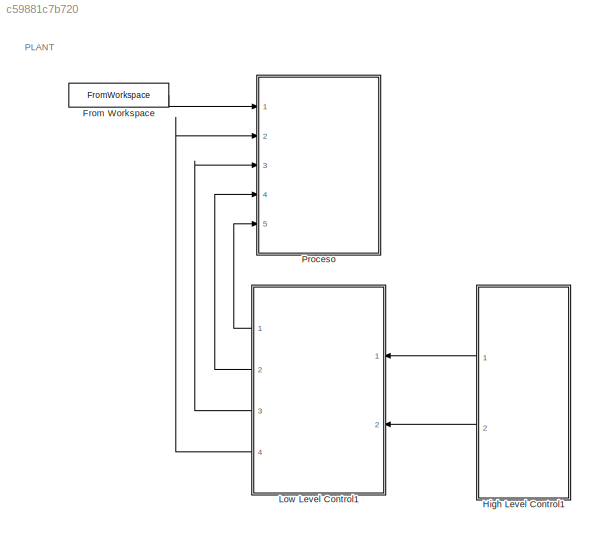
MODEL slx_c59881c7b720
KIND model
CONFIG AbsTol = auto
CONFIG EnableMultiTasking = on
CONFIG FixedStep = 1E-4
CONFIG MaxStep = 100
CONFIG MinStep = auto
CONFIG RelTol = 1e-3
CONFIG SampleTimeConstraint = Unconstrained
CONFIG SolverName = ode23tb
CONFIG StartTime = 0.0
CONFIG StopTime = 100
BLOCK [FromWorkspace] From Workspace
  OutputAfterFinalValue = Holding final value
  VariableName = InfluentBSM1_LT(1:16)
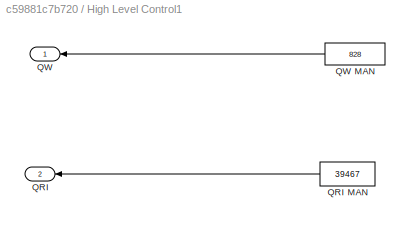
BLOCK [SubSystem] High Level Control1
  Ports = [0, 2]
  RequestExecContextInheritance = off
BLOCK [Outport] High Level Control1/QRI
  Port = 2
BLOCK [Constant] High Level Control1/QRI MAN
  Value = 39467
BLOCK [Outport] High Level Control1/QW
BLOCK [Constant] High Level Control1/QW MAN
  Value = 828
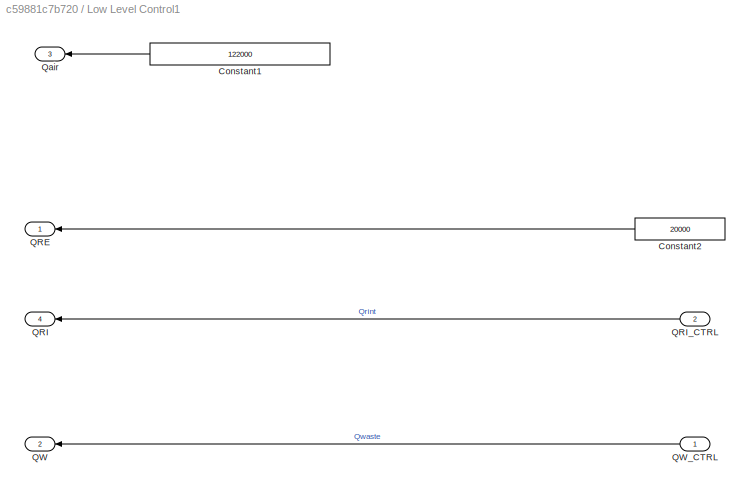
BLOCK [SubSystem] Low Level Control1
  Ports = [2, 4]
  RequestExecContextInheritance = off
BLOCK [Constant] Low Level Control1/Constant1
  Value = 122000
BLOCK [Constant] Low Level Control1/Constant2
  Value = 20000
BLOCK [Outport] Low Level Control1/QRE
BLOCK [Outport] Low Level Control1/QRI
  Port = 4
BLOCK [Inport] Low Level Control1/QRI_CTRL
  Port = 2
BLOCK [Outport] Low Level Control1/QW
  Port = 2
BLOCK [Inport] Low Level Control1/QW_CTRL
BLOCK [Outport] Low Level Control1/Qair
  Port = 3
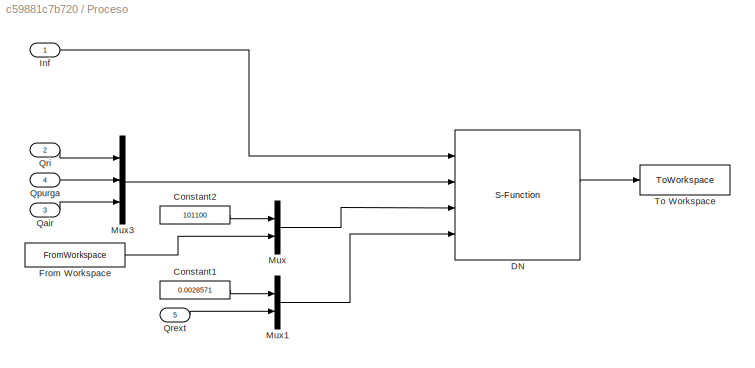
BLOCK [SubSystem] Proceso
  Ports = [5]
  RequestExecContextInheritance = off
BLOCK [Constant] Proceso/Constant1
  Value = 0.0028571
BLOCK [Constant] Proceso/Constant2
  Value = 101100
BLOCK [S-Function] Proceso/DN
  EnableBusSupport = off
  FunctionName = DN_PROCESS
  Parameters = ParamsEsteq,Cineticos20,Arrhenius,Esteq, Param_D,Param_N, x0
  Ports = [4, 4]
  SFcnIsStateOwnerBlock = off
  SFunctionDeploymentMode = off
BLOCK [FromWorkspace] Proceso/From Workspace
  OutputAfterFinalValue = Holding final value
  VariableName = Temp_BSM1_LT
BLOCK [Inport] Proceso/Inf
BLOCK [Mux] Proceso/Mux
  DisplayOption = bar
  Inputs = 2
  Ports = [2, 1]
BLOCK [Mux] Proceso/Mux1
  DisplayOption = bar
  Inputs = 2
  Ports = [2, 1]
BLOCK [Mux] Proceso/Mux3
  DisplayOption = bar
  Inputs = 3
  Ports = [3, 1]
BLOCK [Inport] Proceso/Qair
  Port = 3
BLOCK [Inport] Proceso/Qpurga
  Port = 4
BLOCK [Inport] Proceso/Qrext
  Port = 5
BLOCK [Inport] Proceso/Qri
  Port = 2
BLOCK [ToWorkspace] Proceso/To Workspace
  FixptAsFi = on
  MaxDataPoints = 100
  Ports = [1]
  SampleTime = 15/1440
  VariableName = N_sensors
ANNOTATION (root): PLANT
LINE From Workspace:1 -> Proceso:1
LINE High Level Control1/QRI MAN:1 -> High Level Control1/QRI:1
LINE High Level Control1/QW MAN:1 -> High Level Control1/QW:1
LINE High Level Control1:1 -> Low Level Control1:1
LINE High Level Control1:2 -> Low Level Control1:2
LINE Low Level Control1/Constant1:1 -> Low Level Control1/Qair:1
LINE Low Level Control1/Constant2:1 -> Low Level Control1/QRE:1
LINE Low Level Control1/QRI_CTRL:1 -> Low Level Control1/QRI:1
LINE Low Level Control1/QW_CTRL:1 -> Low Level Control1/QW:1
LINE Low Level Control1:1 -> Proceso:5
LINE Low Level Control1:2 -> Proceso:4
LINE Low Level Control1:3 -> Proceso:3
LINE Low Level Control1:4 -> Proceso:2
LINE Proceso/Constant1:1 -> Proceso/Mux1:1
LINE Proceso/Constant2:1 -> Proceso/Mux:1
LINE Proceso/DN:2 -> Proceso/To Workspace:1
LINE Proceso/From Workspace:1 -> Proceso/Mux:2
LINE Proceso/Inf:1 -> Proceso/DN:1
LINE Proceso/Mux1:1 -> Proceso/DN:4
LINE Proceso/Mux3:1 -> Proceso/DN:2
LINE Proceso/Mux:1 -> Proceso/DN:3
LINE Proceso/Qair:1 -> Proceso/Mux3:3
LINE Proceso/Qpurga:1 -> Proceso/Mux3:2
LINE Proceso/Qrext:1 -> Proceso/Mux1:2
LINE Proceso/Qri:1 -> Proceso/Mux3:1
